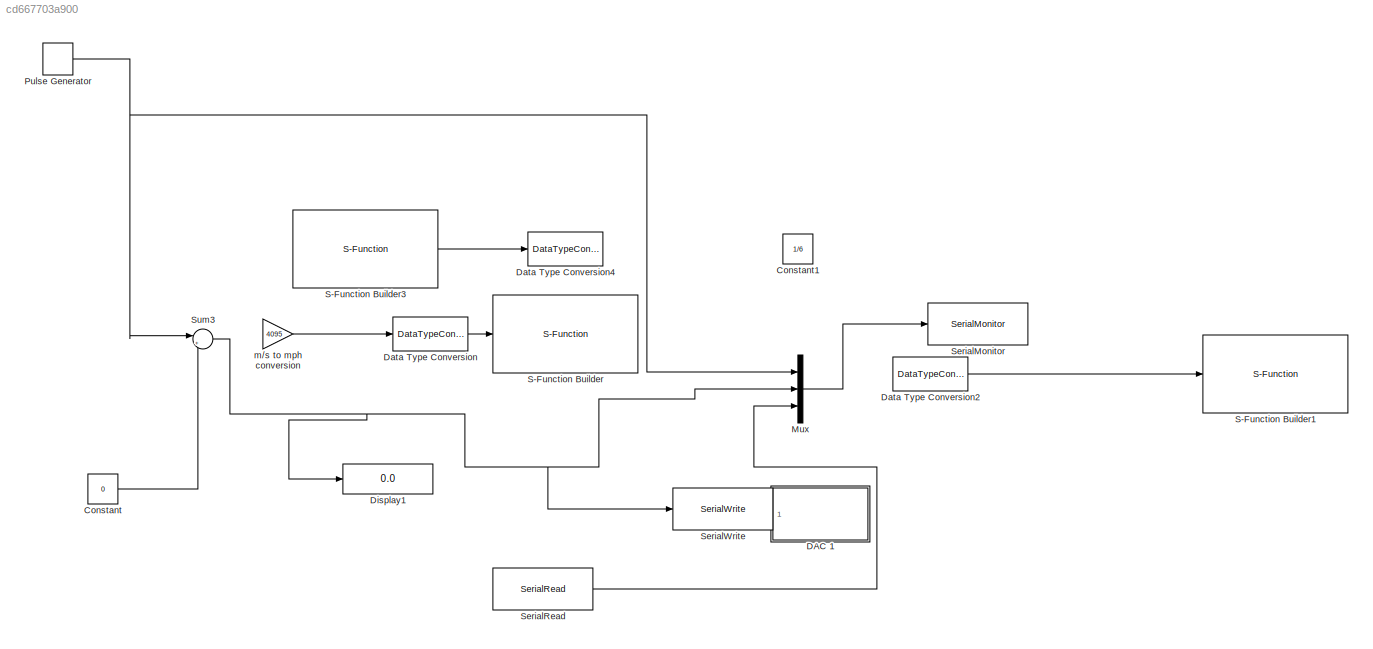
MODEL slx_cd667703a900
KIND model
BLOCK [Constant] Constant
  Value = 0
BLOCK [Constant] Constant1
  Commented = on
  Value = 1/6
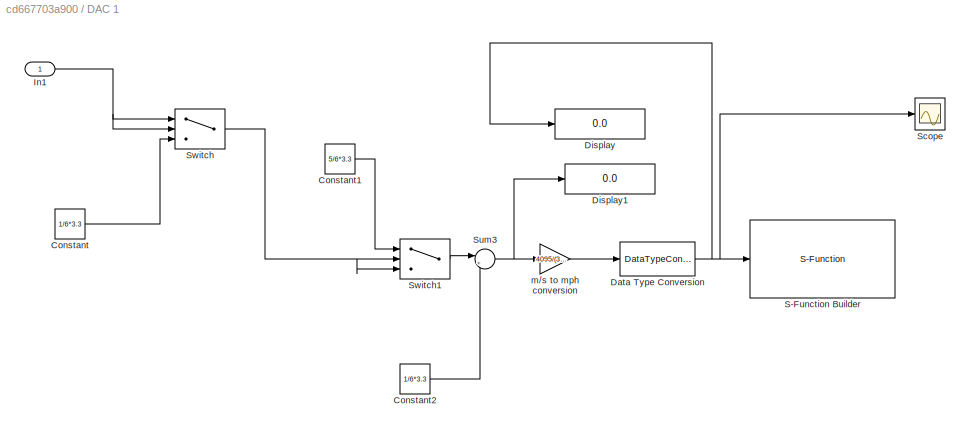
BLOCK [SubSystem] DAC 1
  Commented = on
  Ports = [1]
  RequestExecContextInheritance = off
BLOCK [Constant] DAC 1/Constant
  Value = 1/6*3.3
BLOCK [Constant] DAC 1/Constant1
  Value = 5/6*3.3
BLOCK [Constant] DAC 1/Constant2
  Value = 1/6*3.3
BLOCK [DataTypeConversion] DAC 1/Data Type Conversion
  OutDataTypeStr = int16
  RndMeth = Floor
  SaturateOnIntegerOverflow = off
BLOCK [Display] DAC 1/Display
  Decimation = 1
  Ports = [1]
BLOCK [Display] DAC 1/Display1
  Decimation = 1
  Ports = [1]
BLOCK [Inport] DAC 1/In1
  IconDisplay = Port number
  SampleTime = Tsa
BLOCK [S-Function] DAC 1/S-Function Builder
  CopyFcn = set_param(gcbh,'LinkStatus','none')
  EnableBusSupport = off
  FunctionName = DAC
  InitFcn = try, set_param(gcb,'FunctionName','DAC'), end
  OpenFcn = sfunctionwizard(gcbh)
  Parameters = int8(dacNum)
  Ports = [1]
  PreSaveFcn = try, set_param(gcb,'FunctionName','DAC'), end
  SFunctionModules = DAC_wrapper
BLOCK [Scope] DAC 1/Scope
  DataFormat = StructureWithTime
  Floating = off
  NumInputPorts = 1
  Ports = [1]
  SampleTime = 0
  SaveName = ScopeData2
  ShowLegends = off
  YMax = 4299.75
  YMin = 3890.25
BLOCK [Sum] DAC 1/Sum3
  IconShape = round
  InputSameDT = off
  Inputs = |+-
  OutDataTypeStr = Inherit: Inherit via internal rule
  Ports = [2, 1]
  SaturateOnIntegerOverflow = off
BLOCK [Switch] DAC 1/Switch
  Criteria = u2 > Threshold
  InputSameDT = off
  SaturateOnIntegerOverflow = off
  Threshold = 1/6*3.3
BLOCK [Switch] DAC 1/Switch1
  Criteria = u2 > Threshold
  InputSameDT = off
  SaturateOnIntegerOverflow = off
  Threshold = 5/6*3.3
BLOCK [Gain] DAC 1/m//s to mph conversion
  Gain = 4095/(3.3*2/3)
BLOCK [DataTypeConversion] Data Type Conversion
  Commented = on
  OutDataTypeStr = int16
  RndMeth = Floor
  SaturateOnIntegerOverflow = off
BLOCK [DataTypeConversion] Data Type Conversion2
  Commented = on
  RndMeth = Floor
  SaturateOnIntegerOverflow = off
BLOCK [DataTypeConversion] Data Type Conversion4
  Commented = on
  RndMeth = Floor
  SaturateOnIntegerOverflow = off
BLOCK [Display] Display1
  Decimation = 1
  Ports = [1]
BLOCK [Mux] Mux
  DisplayOption = bar
  Inputs = 3
  Ports = [3, 1]
BLOCK [DiscretePulseGenerator] Pulse Generator
  Amplitude = 5
  Period = 10
  Ports = [0, 1]
  PulseType = Time based
  PulseWidth = 90
BLOCK [S-Function] S-Function Builder
  Commented = on
  CopyFcn = set_param(gcbh,'LinkStatus','none')
  EnableBusSupport = off
  FunctionName = DAC
  InitFcn = try, set_param(gcb,'FunctionName','DAC'), end
  OpenFcn = sfunctionwizard(gcbh)
  Parameters = int8(dacNum)
  Ports = [1]
  PreSaveFcn = try, set_param(gcb,'FunctionName','DAC'), end
  SFunctionModules = DAC_wrapper
BLOCK [S-Function] S-Function Builder1
  Commented = on
  CopyFcn = set_param(gcbh,'LinkStatus','none')
  EnableBusSupport = off
  FunctionName = SerialOut1
  InitFcn = try, set_param(gcb,'FunctionName','SerialOut1'), end
  OpenFcn = sfunctionwizard(gcbh)
  Parameters = int8(0)
  Ports = [1]
  PreSaveFcn = try, set_param(gcb,'FunctionName','SerialOut1'), end
  SFunctionModules = SerialOut1_wrapper
BLOCK [S-Function] S-Function Builder3
  Commented = on
  CopyFcn = set_param(gcbh,'LinkStatus','none')
  EnableBusSupport = off
  FunctionName = SerialIn
  InitFcn = try, set_param(gcb,'FunctionName','SerialIn'), end
  OpenFcn = sfunctionwizard(gcbh)
  Parameters = int8(0)
  Ports = [0, 1]
  PreSaveFcn = try, set_param(gcb,'FunctionName','SerialIn'), end
  SFunctionModules = SerialIn_wrapper
BLOCK [Reference] SerialMonitor  REF=EEE481Arduino/SerialMonitor
  FunctionWithSeparateData = off
  GeneratePreprocessorConditionals = off
  Ports = [1]
  ShowPortLabels = FromPortIcon
  SourceBlock = EEE481Arduino/SerialMonitor
  SystemSampleTime = -1
BLOCK [Reference] SerialRead  REF=EEE481Arduino/SerialRead
  Ports = [0, 1]
  SourceBlock = EEE481Arduino/SerialRead
  serialNum = 2
BLOCK [Reference] SerialWrite  REF=EEE481Arduino/SerialWrite
  Ports = [1]
  SourceBlock = EEE481Arduino/SerialWrite
  serialNum = 2
BLOCK [Sum] Sum3
  IconShape = round
  InputSameDT = off
  Inputs = |+-
  OutDataTypeStr = Inherit: Inherit via internal rule
  Ports = [2, 1]
  SaturateOnIntegerOverflow = off
BLOCK [Gain] m//s to mph conversion
  Commented = on
  Gain = 4095
LINE Constant:1 -> Sum3:2
LINE DAC 1/Constant1:1 -> DAC 1/Switch1:1
LINE DAC 1/Constant2:1 -> DAC 1/Sum3:2
LINE DAC 1/Constant:1 -> DAC 1/Switch:3
NET DAC 1/Data Type Conversion:1 -> DAC 1/Display:1, DAC 1/S-Function Builder:1, DAC 1/Scope:1
NET DAC 1/In1:1 -> DAC 1/Switch:1, DAC 1/Switch:2
NET DAC 1/Sum3:1 -> DAC 1/Display1:1, DAC 1/m//s to mph conversion:1
LINE DAC 1/Switch1:1 -> DAC 1/Sum3:1
NET DAC 1/Switch:1 -> DAC 1/Switch1:2, DAC 1/Switch1:3
LINE DAC 1/m//s to mph conversion:1 -> DAC 1/Data Type Conversion:1
LINE Data Type Conversion2:1 -> S-Function Builder1:1
LINE Data Type Conversion:1 -> S-Function Builder:1
LINE Mux:1 -> SerialMonitor:1
NET Pulse Generator:1 -> Mux:1, Sum3:1
LINE S-Function Builder3:1 -> Data Type Conversion4:1
LINE SerialRead:1 -> Mux:3
NET Sum3:1 -> Display1:1, Mux:2, SerialWrite:1
LINE m//s to mph conversion:1 -> Data Type Conversion:1
note: NET lines group one-source signal fan-out (src -> all destinations, sorted); 1:1 wires keep LINE
